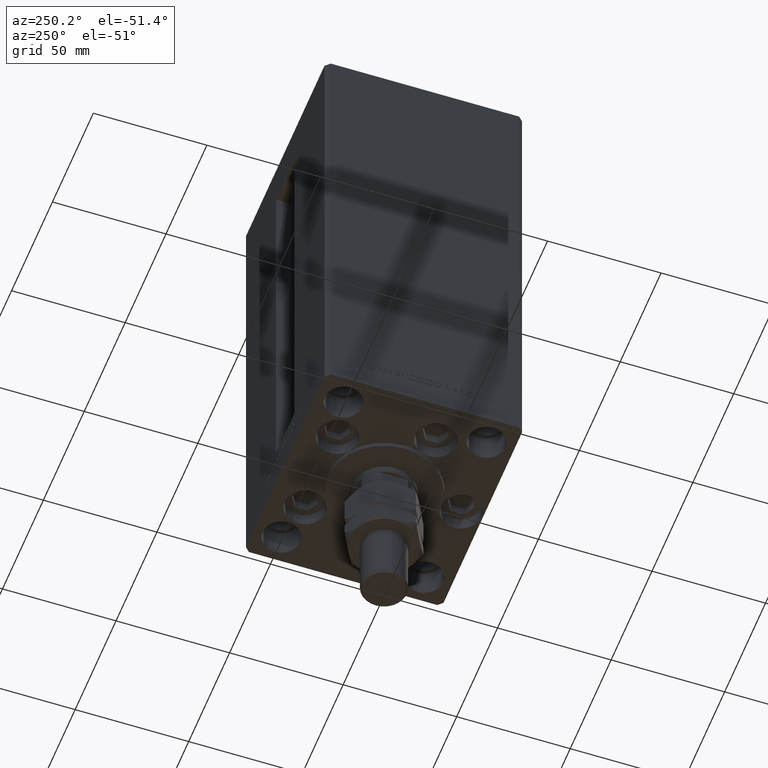
[diagram: clean part render]
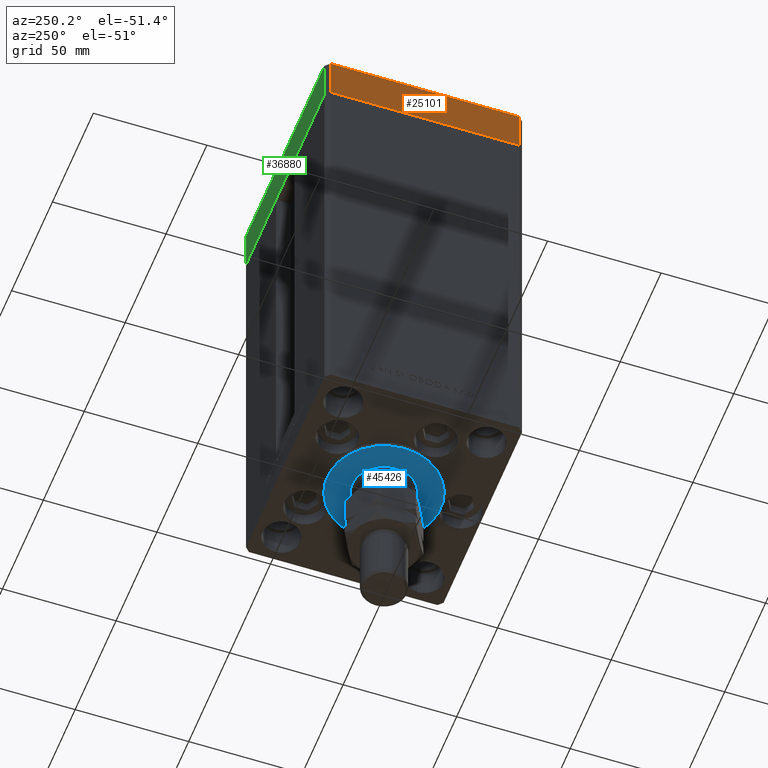
[diagram: same view with three faces highlighted in distinct colors, each labeled with its STEP entity id]
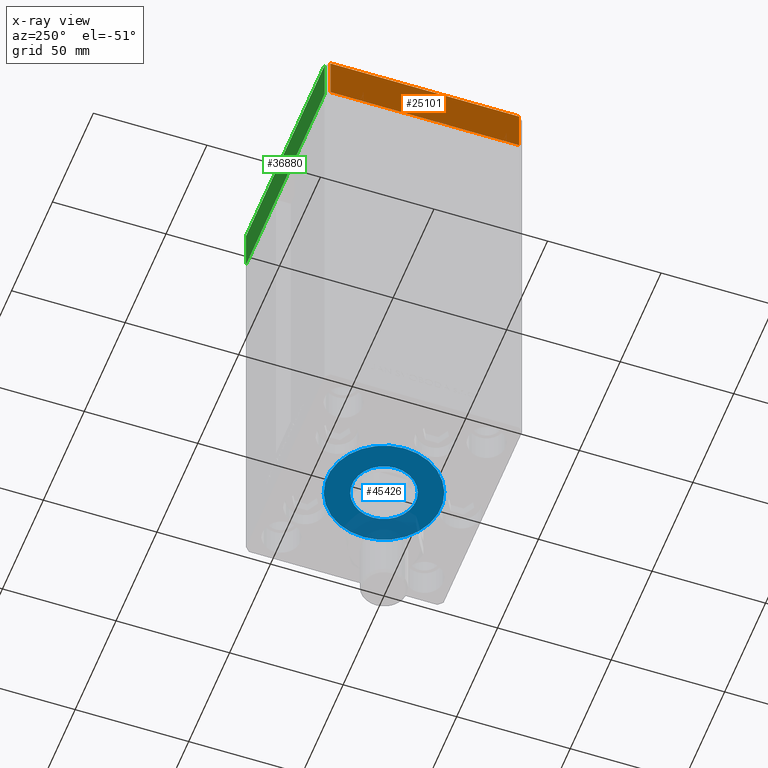
[diagram: x-ray of the same camera — body ghosted, the three highlighted faces saturated]
A machine part, auxiliary view with three faces highlighted in distinct colors.
The next image is the same camera in x-ray (body ghosted, the three faces saturated) — at least one of them is partly hidden behind the body in this view.
Their STEP definitions:

[orange] entity #25101 — the highlighted planar face has unit normal (-1, -0, 0).
#5185 = VERTEX_POINT ( 'NONE', #9419 ) ;
#6215 = ORIENTED_EDGE ( 'NONE', *, *, #39346, .T. ) ;
#6601 = LINE ( 'NONE', #41787, #46222 ) ;
#8111 = AXIS2_PLACEMENT_3D ( 'NONE', #41382, #21120, #9792 ) ;
#8342 = LINE ( 'NONE', #20684, #18161 ) ;
#9419 = CARTESIAN_POINT ( 'NONE',  ( -50.00000000000000000, -41.50000000000000000, 0.000000000000000000 ) ) ;
#9792 = DIRECTION ( 'NONE',  ( 8.360113137237628665E-17, -1.000000000000000000, 0.000000000000000000 ) ) ;
#9904 = VECTOR ( 'NONE', #39501, 1000.000000000000000 ) ;
#12645 = EDGE_CURVE ( 'NONE', #33346, #36414, #8342, .T. ) ;
#13648 = PLANE ( 'NONE',  #8111 ) ;
#14119 = EDGE_CURVE ( 'NONE', #16255, #5185, #20252, .T. ) ;
#16255 = VERTEX_POINT ( 'NONE', #21736 ) ;
#16387 = CARTESIAN_POINT ( 'NONE',  ( -50.00000000000000000, -41.50000000000000000, -19.00000000000000000 ) ) ;
#18161 = VECTOR ( 'NONE', #44044, 1000.000000000000000 ) ;
#18432 = DIRECTION ( 'NONE',  ( 8.360113137237628665E-17, -1.000000000000000000, 0.000000000000000000 ) ) ;
#19605 = CARTESIAN_POINT ( 'NONE',  ( -50.00000000000000711, 41.49999999999995026, -19.00000000000000000 ) ) ;
#20252 = LINE ( 'NONE', #16387, #9904 ) ;
#20684 = CARTESIAN_POINT ( 'NONE',  ( -50.00000000000000711, 41.49999999999995026, -19.00000000000000000 ) ) ;
#21120 = DIRECTION ( 'NONE',  ( -1.000000000000000000, -8.360113137237628665E-17, 0.000000000000000000 ) ) ;
#21147 = ORIENTED_EDGE ( 'NONE', *, *, #14119, .T. ) ;
#21736 = CARTESIAN_POINT ( 'NONE',  ( -50.00000000000000000, -41.50000000000000000, -19.00000000000000000 ) ) ;
#25101 = ADVANCED_FACE ( 'NONE', ( #32675 ), #13648, .T. ) ;
#25326 = LINE ( 'NONE', #37864, #36969 ) ;
#28799 = EDGE_CURVE ( 'NONE', #36414, #5185, #25326, .T. ) ;
#32675 = FACE_OUTER_BOUND ( 'NONE', #45949, .T. ) ;
#33032 = DIRECTION ( 'NONE',  ( 8.360113137237628665E-17, -1.000000000000000000, 0.000000000000000000 ) ) ;
#33346 = VERTEX_POINT ( 'NONE', #19605 ) ;
#36414 = VERTEX_POINT ( 'NONE', #40273 ) ;
#36969 = VECTOR ( 'NONE', #33032, 1000.000000000000000 ) ;
#37864 = CARTESIAN_POINT ( 'NONE',  ( -50.00000000000000711, 41.49999999999995026, 0.000000000000000000 ) ) ;
#39346 = EDGE_CURVE ( 'NONE', #33346, #16255, #6601, .T. ) ;
#39501 = DIRECTION ( 'NONE',  ( 0.000000000000000000, 0.000000000000000000, 1.000000000000000000 ) ) ;
#40273 = CARTESIAN_POINT ( 'NONE',  ( -50.00000000000000711, 41.49999999999995026, 0.000000000000000000 ) ) ;
#41382 = CARTESIAN_POINT ( 'NONE',  ( -50.00000000000000711, 41.49999999999995026, -19.00000000000000000 ) ) ;
#41787 = CARTESIAN_POINT ( 'NONE',  ( -50.00000000000000711, 41.49999999999995026, -19.00000000000000000 ) ) ;
#44044 = DIRECTION ( 'NONE',  ( 0.000000000000000000, 0.000000000000000000, 1.000000000000000000 ) ) ;
#45949 = EDGE_LOOP ( 'NONE', ( #47596, #48858, #6215, #21147 ) ) ;
#46222 = VECTOR ( 'NONE', #18432, 1000.000000000000000 ) ;
#47596 = ORIENTED_EDGE ( 'NONE', *, *, #28799, .F. ) ;
#48858 = ORIENTED_EDGE ( 'NONE', *, *, #12645, .F. ) ;

[blue] entity #45426 — the highlighted planar face has unit normal (0, 0, -1).
#2248 = ORIENTED_EDGE ( 'NONE', *, *, #3873, .F. ) ;
#2499 = ORIENTED_EDGE ( 'NONE', *, *, #21324, .T. ) ;
#2583 = CARTESIAN_POINT ( 'NONE',  ( 0.000000000000000000, -6.938893903907228378E-15, 2.000000000000000000 ) ) ;
#3182 = CARTESIAN_POINT ( 'NONE',  ( -25.00000000000000000, -6.938893903907228378E-15, 2.000000000000000000 ) ) ;
#3873 = EDGE_CURVE ( 'NONE', #6586, #45370, #12924, .T. ) ;
#6586 = VERTEX_POINT ( 'NONE', #36447 ) ;
#9754 = PLANE ( 'NONE',  #15175 ) ;
#10004 = FACE_BOUND ( 'NONE', #23727, .T. ) ;
#10876 = DIRECTION ( 'NONE',  ( 1.000000000000000000, 0.000000000000000000, 0.000000000000000000 ) ) ;
#11274 = AXIS2_PLACEMENT_3D ( 'NONE', #2583, #14644, #45970 ) ;
#11275 = CIRCLE ( 'NONE', #39982, 25.00000000000000000 ) ;
#11884 = ORIENTED_EDGE ( 'NONE', *, *, #15560, .F. ) ;
#12924 = CIRCLE ( 'NONE', #11274, 14.00000000000000000 ) ;
#14644 = DIRECTION ( 'NONE',  ( 0.000000000000000000, 0.000000000000000000, 1.000000000000000000 ) ) ;
#15175 = AXIS2_PLACEMENT_3D ( 'NONE', #40847, #37726, #18226 ) ;
#15513 = DIRECTION ( 'NONE',  ( 0.000000000000000000, 0.000000000000000000, 1.000000000000000000 ) ) ;
#15560 = EDGE_CURVE ( 'NONE', #45370, #6586, #41920, .T. ) ;
#18226 = DIRECTION ( 'NONE',  ( 1.000000000000000000, 0.000000000000000000, -0.000000000000000000 ) ) ;
#18584 = DIRECTION ( 'NONE',  ( 0.000000000000000000, 0.000000000000000000, 1.000000000000000000 ) ) ;
#21324 = EDGE_CURVE ( 'NONE', #32419, #37852, #11275, .T. ) ;
#21586 = ORIENTED_EDGE ( 'NONE', *, *, #27907, .T. ) ;
#22192 = CARTESIAN_POINT ( 'NONE',  ( 0.000000000000000000, -6.938893903907228378E-15, 2.000000000000000000 ) ) ;
#23727 = EDGE_LOOP ( 'NONE', ( #2248, #11884 ) ) ;
#25478 = AXIS2_PLACEMENT_3D ( 'NONE', #50686, #15513, #36039 ) ;
#26969 = CARTESIAN_POINT ( 'NONE',  ( 0.000000000000000000, -6.938893903907228378E-15, 2.000000000000000000 ) ) ;
#27907 = EDGE_CURVE ( 'NONE', #37852, #32419, #42659, .T. ) ;
#32419 = VERTEX_POINT ( 'NONE', #3182 ) ;
#35412 = DIRECTION ( 'NONE',  ( 0.000000000000000000, 0.000000000000000000, 1.000000000000000000 ) ) ;
#36039 = DIRECTION ( 'NONE',  ( 1.000000000000000000, 0.000000000000000000, 0.000000000000000000 ) ) ;
#36447 = CARTESIAN_POINT ( 'NONE',  ( 14.00000000000000000, -6.938893903907228378E-15, 2.000000000000000000 ) ) ;
#37726 = DIRECTION ( 'NONE',  ( 0.000000000000000000, 0.000000000000000000, 1.000000000000000000 ) ) ;
#37852 = VERTEX_POINT ( 'NONE', #45019 ) ;
#38654 = AXIS2_PLACEMENT_3D ( 'NONE', #26969, #35412, #42624 ) ;
#39982 = AXIS2_PLACEMENT_3D ( 'NONE', #22192, #18584, #10876 ) ;
#40599 = CARTESIAN_POINT ( 'NONE',  ( -14.00000000000000000, -5.224388385100933937E-15, 2.000000000000000000 ) ) ;
#40847 = CARTESIAN_POINT ( 'NONE',  ( 0.000000000000000000, -6.938893903907228378E-15, 2.000000000000000000 ) ) ;
#41920 = CIRCLE ( 'NONE', #38654, 14.00000000000000000 ) ;
#42624 = DIRECTION ( 'NONE',  ( 1.000000000000000000, 0.000000000000000000, 0.000000000000000000 ) ) ;
#42659 = CIRCLE ( 'NONE', #25478, 25.00000000000000000 ) ;
#45019 = CARTESIAN_POINT ( 'NONE',  ( 25.00000000000000000, -3.877276906038844941E-15, 2.000000000000000000 ) ) ;
#45370 = VERTEX_POINT ( 'NONE', #40599 ) ;
#45426 = ADVANCED_FACE ( 'NONE', ( #10004, #48800 ), #9754, .T. ) ;
#45970 = DIRECTION ( 'NONE',  ( 1.000000000000000000, 0.000000000000000000, 0.000000000000000000 ) ) ;
#48800 = FACE_OUTER_BOUND ( 'NONE', #50250, .T. ) ;
#50250 = EDGE_LOOP ( 'NONE', ( #2499, #21586 ) ) ;
#50686 = CARTESIAN_POINT ( 'NONE',  ( 0.000000000000000000, -6.938893903907228378E-15, 2.000000000000000000 ) ) ;

[green] entity #36880 — the highlighted planar face has unit normal (-0, 1, 0).
#906 = VECTOR ( 'NONE', #25138, 1000.000000000000000 ) ;
#1471 = DIRECTION ( 'NONE',  ( 0.000000000000000000, 0.000000000000000000, 1.000000000000000000 ) ) ;
#3546 = CARTESIAN_POINT ( 'NONE',  ( 47.99999999999990763, 43.50000000000000000, 0.000000000000000000 ) ) ;
#3710 = PLANE ( 'NONE',  #38767 ) ;
#6000 = LINE ( 'NONE', #9588, #9370 ) ;
#6349 = CARTESIAN_POINT ( 'NONE',  ( 47.99999999999990763, 43.50000000000000000, -19.00000000000000000 ) ) ;
#7142 = CARTESIAN_POINT ( 'NONE',  ( 47.99999999999990763, 43.50000000000000000, 0.000000000000000000 ) ) ;
#9075 = VERTEX_POINT ( 'NONE', #7142 ) ;
#9370 = VECTOR ( 'NONE', #32723, 1000.000000000000000 ) ;
#9588 = CARTESIAN_POINT ( 'NONE',  ( -48.00000000000000711, 43.49999999999996447, -19.00000000000000000 ) ) ;
#15100 = EDGE_CURVE ( 'NONE', #29679, #15646, #44649, .T. ) ;
#15646 = VERTEX_POINT ( 'NONE', #50340 ) ;
#16247 = ORIENTED_EDGE ( 'NONE', *, *, #40906, .T. ) ;
#17051 = LINE ( 'NONE', #3546, #43458 ) ;
#19375 = CARTESIAN_POINT ( 'NONE',  ( 47.99999999999990763, 43.50000000000000000, -19.00000000000000000 ) ) ;
#20997 = LINE ( 'NONE', #43845, #27090 ) ;
#24771 = ORIENTED_EDGE ( 'NONE', *, *, #15100, .T. ) ;
#25138 = DIRECTION ( 'NONE',  ( -1.000000000000000000, -3.614007241618350743E-16, 0.000000000000000000 ) ) ;
#26541 = CARTESIAN_POINT ( 'NONE',  ( -48.00000000000000711, 43.49999999999996447, 0.000000000000000000 ) ) ;
#27090 = VECTOR ( 'NONE', #1471, 1000.000000000000000 ) ;
#27618 = EDGE_CURVE ( 'NONE', #29679, #9075, #20997, .T. ) ;
#28033 = ORIENTED_EDGE ( 'NONE', *, *, #30099, .F. ) ;
#29679 = VERTEX_POINT ( 'NONE', #48994 ) ;
#30077 = ORIENTED_EDGE ( 'NONE', *, *, #27618, .F. ) ;
#30099 = EDGE_CURVE ( 'NONE', #9075, #46875, #17051, .T. ) ;
#30931 = FACE_OUTER_BOUND ( 'NONE', #34594, .T. ) ;
#32723 = DIRECTION ( 'NONE',  ( 0.000000000000000000, 0.000000000000000000, 1.000000000000000000 ) ) ;
#34594 = EDGE_LOOP ( 'NONE', ( #28033, #30077, #24771, #16247 ) ) ;
#35026 = DIRECTION ( 'NONE',  ( -3.614007241618350743E-16, 1.000000000000000000, 0.000000000000000000 ) ) ;
#36880 = ADVANCED_FACE ( 'NONE', ( #30931 ), #3710, .T. ) ;
#38767 = AXIS2_PLACEMENT_3D ( 'NONE', #19375, #35026, #50687 ) ;
#40906 = EDGE_CURVE ( 'NONE', #15646, #46875, #6000, .T. ) ;
#43458 = VECTOR ( 'NONE', #47349, 1000.000000000000000 ) ;
#43845 = CARTESIAN_POINT ( 'NONE',  ( 47.99999999999990763, 43.50000000000000000, -19.00000000000000000 ) ) ;
#44649 = LINE ( 'NONE', #6349, #906 ) ;
#46875 = VERTEX_POINT ( 'NONE', #26541 ) ;
#47349 = DIRECTION ( 'NONE',  ( -1.000000000000000000, -3.614007241618350743E-16, 0.000000000000000000 ) ) ;
#48994 = CARTESIAN_POINT ( 'NONE',  ( 47.99999999999990763, 43.50000000000000000, -19.00000000000000000 ) ) ;
#50340 = CARTESIAN_POINT ( 'NONE',  ( -48.00000000000000711, 43.49999999999996447, -19.00000000000000000 ) ) ;
#50687 = DIRECTION ( 'NONE',  ( -1.000000000000000000, -3.614007241618350743E-16, 0.000000000000000000 ) ) ;